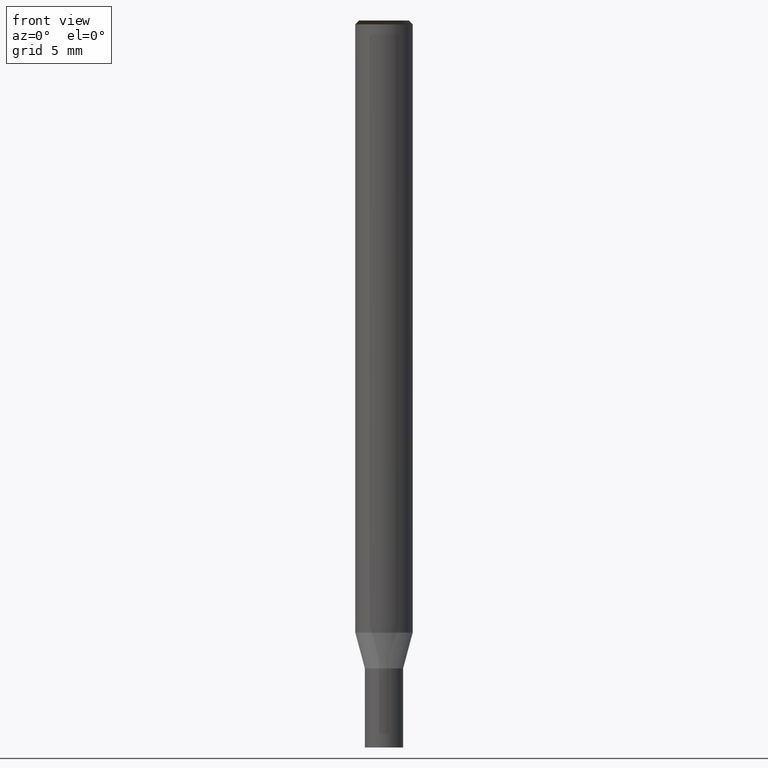
[diagram: clean part render]
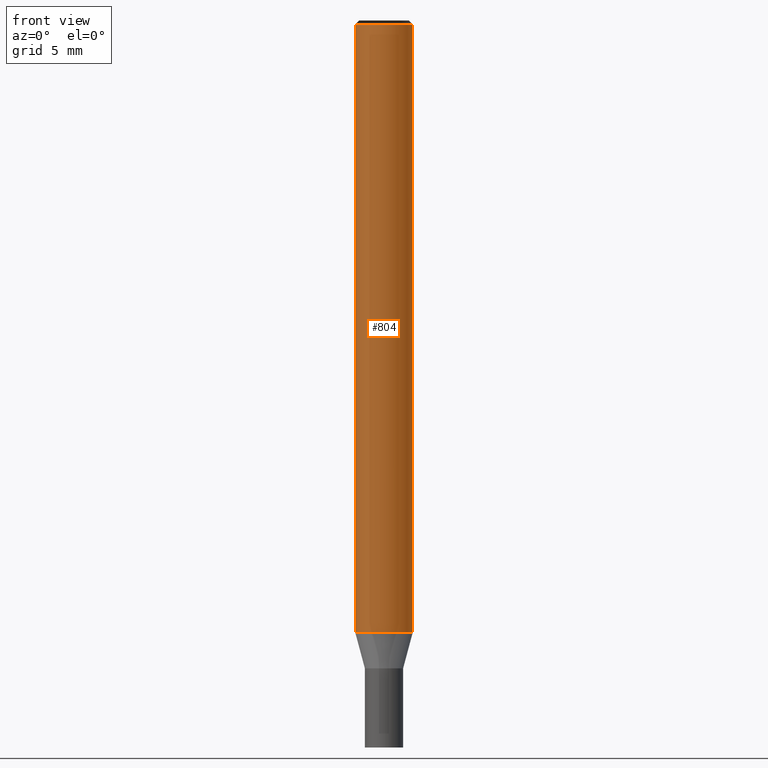
[diagram: same view with one face highlighted and labeled with its STEP entity id]
A machine part, front view. The second image highlights one B-rep face of the part: STEP entity #804.
In plain terms, the highlighted face is a freeform B-spline surface patch.
Its self-contained STEP definition (entity closure, byte-faithful):
#475=CARTESIAN_POINT('',(1.5,0.0,0.0));
#479=CARTESIAN_POINT('',(-1.5,0.0,0.0));
#480=CARTESIAN_POINT('',(1.5,0.0,31.8));
#484=CARTESIAN_POINT('',(-1.5,0.0,31.8));
#494=CARTESIAN_POINT('',(-1.5,-1.5,0.0));
#495=CARTESIAN_POINT('',(0.0,-1.5,0.0));
#496=CARTESIAN_POINT('',(1.5,-1.5,0.0));
#497=CARTESIAN_POINT('',(-1.5,-1.5,31.8));
#498=CARTESIAN_POINT('',(0.0,-1.5,31.8));
#499=CARTESIAN_POINT('',(1.5,-1.5,31.8));
#785=(
BOUNDED_SURFACE()
B_SPLINE_SURFACE(1,2,(
(#479,#494,#495,#496,#475),
(#484,#497,#498,#499,#480)
), .UNSPECIFIED.,.F.,.F.,.F.)
B_SPLINE_SURFACE_WITH_KNOTS((2,2),(3,2,3),(
0.0,1.0),(
0.0,0.5,1.0), .UNSPECIFIED.)
GEOMETRIC_REPRESENTATION_ITEM()
RATIONAL_B_SPLINE_SURFACE(((1.0,0.707106781187,1.0,0.707106781187,1.0),
(1.0,0.707106781187,1.0,0.707106781187,1.0)
))
REPRESENTATION_ITEM('')
SURFACE()
);
#786=(
BOUNDED_CURVE()
B_SPLINE_CURVE(2,(#475,#496,#495,#494,#479),.UNSPECIFIED.,.F.,.F.)
B_SPLINE_CURVE_WITH_KNOTS((3,2,3),
(0.0,0.5,1.0),.UNSPECIFIED.)
CURVE()
GEOMETRIC_REPRESENTATION_ITEM()
RATIONAL_B_SPLINE_CURVE((1.0,0.707106781187,1.0,0.707106781187,1.0))
REPRESENTATION_ITEM('')
);
#787=(
BOUNDED_CURVE()
B_SPLINE_CURVE(1,(#479,#484),.UNSPECIFIED.,.F.,.F.)
B_SPLINE_CURVE_WITH_KNOTS((2,2),
(0.0,1.0),.UNSPECIFIED.)
CURVE()
GEOMETRIC_REPRESENTATION_ITEM()
RATIONAL_B_SPLINE_CURVE((1.0,1.0))
REPRESENTATION_ITEM('')
);
#788=(
BOUNDED_CURVE()
B_SPLINE_CURVE(2,(#484,#497,#498,#499,#480),.UNSPECIFIED.,.F.,.F.)
B_SPLINE_CURVE_WITH_KNOTS((3,2,3),
(0.0,0.5,1.0),.UNSPECIFIED.)
CURVE()
GEOMETRIC_REPRESENTATION_ITEM()
RATIONAL_B_SPLINE_CURVE((1.0,0.707106781187,1.0,0.707106781187,1.0))
REPRESENTATION_ITEM('')
);
#789=(
BOUNDED_CURVE()
B_SPLINE_CURVE(1,(#480,#475),.UNSPECIFIED.,.F.,.F.)
B_SPLINE_CURVE_WITH_KNOTS((2,2),
(0.0,1.0),.UNSPECIFIED.)
CURVE()
GEOMETRIC_REPRESENTATION_ITEM()
RATIONAL_B_SPLINE_CURVE((1.0,1.0))
REPRESENTATION_ITEM('')
);
#790=VERTEX_POINT('',#475);
#791=VERTEX_POINT('',#479);
#792=VERTEX_POINT('',#480);
#793=VERTEX_POINT('',#484);
#794=EDGE_CURVE('',#790,#791,#786,.T.);
#795=EDGE_CURVE('',#791,#793,#787,.T.);
#796=EDGE_CURVE('',#793,#792,#788,.T.);
#797=EDGE_CURVE('',#792,#790,#789,.T.);
#798=ORIENTED_EDGE('',*,*,#794,.T.);
#799=ORIENTED_EDGE('',*,*,#795,.T.);
#800=ORIENTED_EDGE('',*,*,#796,.T.);
#801=ORIENTED_EDGE('',*,*,#797,.T.);
#802=EDGE_LOOP('',(#798,#799,#800,#801));
#803=FACE_OUTER_BOUND('',#802,.T.);
#804=ADVANCED_FACE('',(#803),#785,.T.);